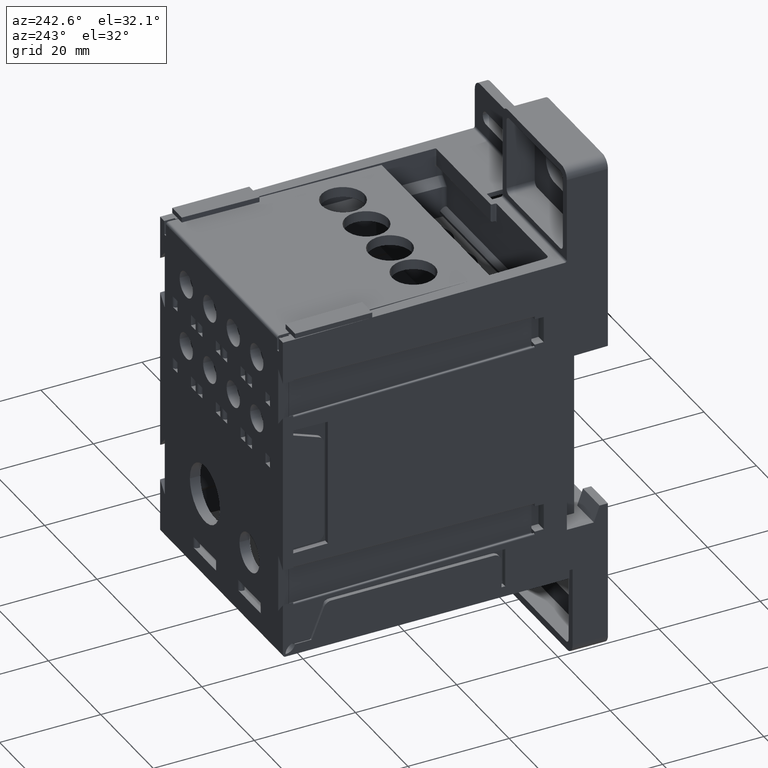
[diagram: clean part render]
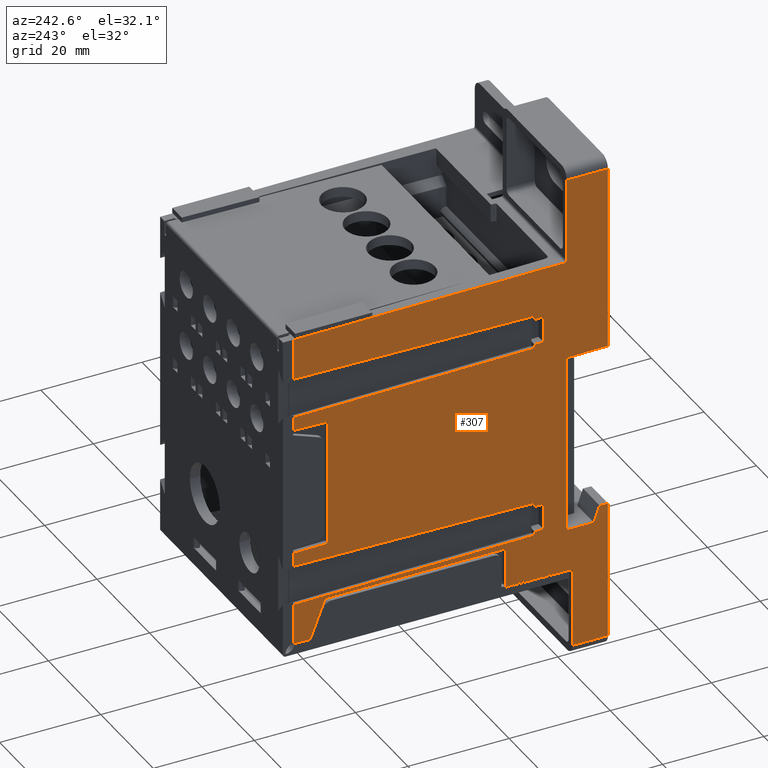
[diagram: same view with one face highlighted and labeled with its STEP entity id]
A machine part, auxiliary view. The second image highlights one B-rep face of the part: STEP entity #307.
In plain terms, the highlighted planar face has unit normal (1, 0, 0).
Its self-contained STEP definition (entity closure, byte-faithful):
#307 = ADVANCED_FACE ( 'NONE', ( #2329 ), #8081, .F. ) ;
#1542 = ORIENTED_EDGE ( 'NONE', *, *, #29911, .T. ) ;
#1543 = ORIENTED_EDGE ( 'NONE', *, *, #29912, .F. ) ;
#1544 = ORIENTED_EDGE ( 'NONE', *, *, #29914, .F. ) ;
#1545 = ORIENTED_EDGE ( 'NONE', *, *, #11513, .T. ) ;
#1546 = ORIENTED_EDGE ( 'NONE', *, *, #29913, .F. ) ;
#1547 = ORIENTED_EDGE ( 'NONE', *, *, #29932, .T. ) ;
#1548 = ORIENTED_EDGE ( 'NONE', *, *, #11498, .T. ) ;
#1549 = ORIENTED_EDGE ( 'NONE', *, *, #29910, .F. ) ;
#1550 = ORIENTED_EDGE ( 'NONE', *, *, #29908, .T. ) ;
#1551 = ORIENTED_EDGE ( 'NONE', *, *, #29909, .F. ) ;
#1552 = ORIENTED_EDGE ( 'NONE', *, *, #29906, .T. ) ;
#2329 = FACE_OUTER_BOUND ( 'NONE', #28103, .T. ) ;
#3083 = VERTEX_POINT ( 'NONE', #6830 ) ;
#3085 = VERTEX_POINT ( 'NONE', #6832 ) ;
#3097 = VERTEX_POINT ( 'NONE', #6835 ) ;
#3100 = VERTEX_POINT ( 'NONE', #6840 ) ;
#3102 = VERTEX_POINT ( 'NONE', #6842 ) ;
#3104 = VERTEX_POINT ( 'NONE', #6846 ) ;
#3115 = VERTEX_POINT ( 'NONE', #6852 ) ;
#3157 = VERTEX_POINT ( 'NONE', #6880 ) ;
#3165 = VERTEX_POINT ( 'NONE', #6888 ) ;
#3190 = VERTEX_POINT ( 'NONE', #6901 ) ;
#3242 = VERTEX_POINT ( 'NONE', #6933 ) ;
#3252 = VERTEX_POINT ( 'NONE', #6944 ) ;
#3374 = VERTEX_POINT ( 'NONE', #7058 ) ;
#3382 = VERTEX_POINT ( 'NONE', #7067 ) ;
#3413 = VERTEX_POINT ( 'NONE', #7106 ) ;
#3452 = VERTEX_POINT ( 'NONE', #7141 ) ;
#3506 = VERTEX_POINT ( 'NONE', #7165 ) ;
#3524 = VERTEX_POINT ( 'NONE', #7171 ) ;
#5604 = LINE ( 'NONE', #7365, #5606 ) ;
#5606 = VECTOR ( 'NONE', #7367, 39.37007874015748900 ) ;
#5609 = LINE ( 'NONE', #7382, #5610 ) ;
#5610 = VECTOR ( 'NONE', #7383, 39.37007874015748100 ) ;
#5611 = LINE ( 'NONE', #7392, #5612 ) ;
#5612 = VECTOR ( 'NONE', #7393, 39.37007874015748900 ) ;
#5615 = LINE ( 'NONE', #7413, #5619 ) ;
#5619 = VECTOR ( 'NONE', #7420, 39.37007874015748100 ) ;
#5707 = LINE ( 'NONE', #8298, #5712 ) ;
#5712 = VECTOR ( 'NONE', #8314, 39.37007874015748100 ) ;
#5713 = LINE ( 'NONE', #8312, #5720 ) ;
#5720 = VECTOR ( 'NONE', #8332, 39.37007874015748100 ) ;
#5753 = LINE ( 'NONE', #8414, #5756 ) ;
#5756 = VECTOR ( 'NONE', #8416, 39.37007874015748100 ) ;
#6830 = CARTESIAN_POINT ( 'NONE',  ( -0.9225000000000002100, 0.2499999999999998100, 0.6322708515814157200 ) ) ;
#6832 = CARTESIAN_POINT ( 'NONE',  ( -0.9224999999999998800, 0.2499999999999998100, -0.8937291484185850800 ) ) ;
#6835 = CARTESIAN_POINT ( 'NONE',  ( -0.9225000000000002100, 0.2499999999999998100, 0.8937291484185842000 ) ) ;
#6840 = CARTESIAN_POINT ( 'NONE',  ( -0.9225000000000001000, 2.129999999999999900, 0.9192531491917596000 ) ) ;
#6842 = CARTESIAN_POINT ( 'NONE',  ( -0.9224999999999998800, 0.2499999999999998100, -0.6322708515814153800 ) ) ;
#6846 = CARTESIAN_POINT ( 'NONE',  ( -0.9225000000000001000, 2.129999999999999900, -0.6067468508082404200 ) ) ;
#6852 = CARTESIAN_POINT ( 'NONE',  ( -0.9225000000000001000, 2.129999999999999900, -0.9192531491917601500 ) ) ;
#6880 = CARTESIAN_POINT ( 'NONE',  ( -0.9225000000000001000, -1.106111767379142400E-018, 0.4799999999999998200 ) ) ;
#6888 = CARTESIAN_POINT ( 'NONE',  ( -0.9224999999999998800, -0.2099999999999999900, -0.9235047687359475600 ) ) ;
#6901 = CARTESIAN_POINT ( 'NONE',  ( -0.9224999999999998800, -0.3199722876330932100, 0.4855851370558657600 ) ) ;
#6933 = CARTESIAN_POINT ( 'NONE',  ( -0.9224999999999998800, 2.128123941519958900E-018, -0.9235047687359475600 ) ) ;
#6944 = CARTESIAN_POINT ( 'NONE',  ( -0.9225000000000001000, 2.129999999999999900, 0.6067468508082404200 ) ) ;
#7058 = CARTESIAN_POINT ( 'NONE',  ( -0.9224999999999998800, -0.3199722876330931600, -0.7985047687359475600 ) ) ;
#7067 = CARTESIAN_POINT ( 'NONE',  ( -0.9224999999999998800, -0.2554962792832745100, -0.7985047687359474500 ) ) ;
#7106 = CARTESIAN_POINT ( 'NONE',  ( -0.9225000000000001000, -0.3199722876330932100, 1.930000000000000200 ) ) ;
#7141 = CARTESIAN_POINT ( 'NONE',  ( -0.9224999999999997600, -0.3199722876330931600, -1.878504768735948200 ) ) ;
#7165 = CARTESIAN_POINT ( 'NONE',  ( -0.9225000000000002100, 0.2499999999999998100, 0.6597462181704809600 ) ) ;
#7171 = CARTESIAN_POINT ( 'NONE',  ( -0.9224999999999998800, 0.2499999999999998100, -0.6597462181704815100 ) ) ;
#7365 = CARTESIAN_POINT ( 'NONE',  ( -0.9224999999999998800, 0.07151047475328595200, -0.6346941317837563300 ) ) ;
#7367 = DIRECTION ( 'NONE',  ( 1.565855785111682500E-018, -0.9999078507571987900, -0.01357534508288867400 ) ) ;
#7382 = CARTESIAN_POINT ( 'NONE',  ( -0.9224999999999998800, 0.08500312431365374100, -0.8914890524703990000 ) ) ;
#7383 = DIRECTION ( 'NONE',  ( 1.565855785111696000E-018, 0.9999078507571987900, -0.01357534508288865300 ) ) ;
#7392 = CARTESIAN_POINT ( 'NONE',  ( -0.9225000000000002100, 0.05079640711835514700, 0.8910246416852166700 ) ) ;
#7393 = DIRECTION ( 'NONE',  ( 1.565855785111680000E-018, -0.9999078507571987900, -0.01357534508288865200 ) ) ;
#7413 = CARTESIAN_POINT ( 'NONE',  ( -0.9225000000000002100, 0.1057171919485846400, 0.6342297209985753300 ) ) ;
#7420 = DIRECTION ( 'NONE',  ( 1.565855785111698600E-018, 0.9999078507571987900, -0.01357534508288867600 ) ) ;
#8081 = PLANE ( 'NONE',  #21751 ) ;
#8102 = CARTESIAN_POINT ( 'NONE',  ( -0.9224999999999998800, 0.08000000000000000200, -1.260000000000000000 ) ) ;
#8103 = DIRECTION ( 'NONE',  ( 1.000000000000000000, 3.971243624352005400E-033, 1.153455603191557700E-016 ) ) ;
#8104 = DIRECTION ( 'NONE',  ( 1.153455603191557700E-016, 2.304399515373206600E-018, -1.000000000000000000 ) ) ;
#8298 = CARTESIAN_POINT ( 'NONE',  ( -0.9224999999999998800, 2.903543389370236300E-018, -1.260000000000000000 ) ) ;
#8312 = CARTESIAN_POINT ( 'NONE',  ( -0.9224999999999998800, 2.128123941519958900E-018, -0.9235047687359475600 ) ) ;
#8314 = DIRECTION ( 'NONE',  ( -1.153455603191557700E-016, -2.304399515373206600E-018, 1.000000000000000000 ) ) ;
#8332 = DIRECTION ( 'NONE',  ( 7.703719777548943400E-033, 1.000000000000000000, 2.304399515373239000E-018 ) ) ;
#8414 = CARTESIAN_POINT ( 'NONE',  ( -0.9225000000000001000, -1.106111767379142000E-018, 0.4799999999999998200 ) ) ;
#8416 = DIRECTION ( 'NONE',  ( 2.013057599426119900E-018, 0.9998476951563912700, -0.01745240643728354600 ) ) ;
#11485 = EDGE_CURVE ( 'NONE', #3104, #3102, #5604, .T. ) ;
#11494 = EDGE_CURVE ( 'NONE', #3085, #3115, #5609, .T. ) ;
#11498 = EDGE_CURVE ( 'NONE', #3100, #3097, #5611, .T. ) ;
#11513 = EDGE_CURVE ( 'NONE', #3083, #3252, #5615, .T. ) ;
#11641 = EDGE_CURVE ( 'NONE', #3242, #3157, #5707, .T. ) ;
#11650 = EDGE_CURVE ( 'NONE', #3165, #3242, #5713, .T. ) ;
#11689 = EDGE_CURVE ( 'NONE', #3190, #3157, #5753, .T. ) ;
#12148 = AXIS2_PLACEMENT_3D ( 'NONE', #16754, #16756, #16758 ) ;
#13586 = LINE ( 'NONE', #16106, #13589 ) ;
#13589 = VECTOR ( 'NONE', #16107, 39.37007874015748100 ) ;
#13636 = LINE ( 'NONE', #16172, #13639 ) ;
#13639 = VECTOR ( 'NONE', #16173, 39.37007874015748100 ) ;
#13711 = LINE ( 'NONE', #16267, #13724 ) ;
#13724 = VECTOR ( 'NONE', #16280, 39.37007874015748100 ) ;
#13726 = LINE ( 'NONE', #16285, #13729 ) ;
#13729 = VECTOR ( 'NONE', #16286, 39.37007874015748900 ) ;
#14235 = CARTESIAN_POINT ( 'NONE',  ( -0.9225000000000004300, 1.859999999999999700, -0.4959999999999994400 ) ) ;
#14248 = CARTESIAN_POINT ( 'NONE',  ( -0.9225000000000002100, 0.2499999999999998100, 0.8662537818295190700 ) ) ;
#14253 = CARTESIAN_POINT ( 'NONE',  ( -0.9225000000000003200, 1.859999999999999700, 0.4959999999999997200 ) ) ;
#14254 = CARTESIAN_POINT ( 'NONE',  ( -0.9225000000000001000, 2.129999999999999900, 0.5007128675306187200 ) ) ;
#14255 = CARTESIAN_POINT ( 'NONE',  ( -0.9225000000000002100, 0.1799999999999998000, 0.8653034200986028400 ) ) ;
#14256 = CARTESIAN_POINT ( 'NONE',  ( -0.9225000000000001000, 2.129999999999999900, 1.241411771605683800 ) ) ;
#14258 = CARTESIAN_POINT ( 'NONE',  ( -0.9225000000000002100, 0.01486910196752439100, 1.259870239312961900 ) ) ;
#14259 = CARTESIAN_POINT ( 'NONE',  ( -0.9225000000000001000, -2.937809045469430000E-018, 1.274869668158924400 ) ) ;
#14261 = CARTESIAN_POINT ( 'NONE',  ( -0.9225000000000002100, 0.1799999999999998000, 0.6606965799013970700 ) ) ;
#14262 = CARTESIAN_POINT ( 'NONE',  ( -0.9224999999999996500, -0.04499999999999992200, -1.878504768735948200 ) ) ;
#14266 = CARTESIAN_POINT ( 'NONE',  ( -0.9224999999999998800, 1.880475755969698300, -0.9413017974028712300 ) ) ;
#14267 = CARTESIAN_POINT ( 'NONE',  ( -0.9225000000000001000, -4.447491064670292600E-018, 1.930000000000000200 ) ) ;
#14270 = CARTESIAN_POINT ( 'NONE',  ( -0.9224999999999998800, 0.1799999999999998000, -0.8653034200986027300 ) ) ;
#14278 = CARTESIAN_POINT ( 'NONE',  ( -0.9224999999999998800, 1.998141250860344200, -1.240642816404675200 ) ) ;
#14283 = CARTESIAN_POINT ( 'NONE',  ( -0.9225000000000001000, 2.129999999999999900, -1.239492102533878800 ) ) ;
#14284 = CARTESIAN_POINT ( 'NONE',  ( -0.9224999999999997600, -0.04499999999999992900, -1.258473039978779100 ) ) ;
#14287 = CARTESIAN_POINT ( 'NONE',  ( -0.9225000000000001000, 2.129999999999999900, -0.5007128675306181700 ) ) ;
#14292 = CARTESIAN_POINT ( 'NONE',  ( -0.9224999999999998800, 0.4793017974028711500, -1.253897527510387000 ) ) ;
#14368 = CARTESIAN_POINT ( 'NONE',  ( -0.9224999999999998800, 0.4793017974028711000, -0.9413017974028712300 ) ) ;
#14369 = CARTESIAN_POINT ( 'NONE',  ( -0.9224999999999998800, 0.2499999999999998100, -0.8662537818295188400 ) ) ;
#14373 = CARTESIAN_POINT ( 'NONE',  ( -0.9224999999999998800, 0.1799999999999998000, -0.6606965799013976300 ) ) ;
#16106 = CARTESIAN_POINT ( 'NONE',  ( -0.9224999999999998800, -0.3199722876330931600, -0.7985047687359473300 ) ) ;
#16107 = DIRECTION ( 'NONE',  ( -1.153455603191557700E-016, -2.304399515373206600E-018, 1.000000000000000000 ) ) ;
#16172 = CARTESIAN_POINT ( 'NONE',  ( -0.9224999999999998800, -0.3199722876330932100, 0.4799999999999998200 ) ) ;
#16173 = DIRECTION ( 'NONE',  ( 9.621497212822952200E-017, 2.304399515373206600E-018, -1.000000000000000000 ) ) ;
#16267 = CARTESIAN_POINT ( 'NONE',  ( -0.9224999999999998800, -0.2554962792832744500, -0.7985047687359475600 ) ) ;
#16280 = DIRECTION ( 'NONE',  ( 7.703719777548943400E-033, 1.000000000000000000, 2.304399515373239000E-018 ) ) ;
#16285 = CARTESIAN_POINT ( 'NONE',  ( -0.9224999999999998800, -0.2100000000000000500, -0.9235047687359473300 ) ) ;
#16286 = DIRECTION ( 'NONE',  ( 1.083893718723267700E-016, 0.3420201433256632200, -0.9396926207859103200 ) ) ;
#16668 = CARTESIAN_POINT ( 'NONE',  ( -0.9224999999999997600, -0.04499999999999992900, -1.260000000000000200 ) ) ;
#16692 = CARTESIAN_POINT ( 'NONE',  ( -0.9225000000000001000, 2.129999999999999900, -3.313025625656987200 ) ) ;
#16695 = DIRECTION ( 'NONE',  ( -6.938893903907228400E-018, -2.304399515373206600E-018, 1.000000000000000000 ) ) ;
#16697 = CARTESIAN_POINT ( 'NONE',  ( -0.9224999999999998800, 0.08000000000000000200, -0.9413017974028712300 ) ) ;
#16699 = DIRECTION ( 'NONE',  ( 7.703719777548943400E-033, 1.000000000000000000, 2.304399515373239000E-018 ) ) ;
#16701 = CARTESIAN_POINT ( 'NONE',  ( -0.9224999999999998800, 1.880649803423718000, -0.9417445741258968500 ) ) ;
#16705 = DIRECTION ( 'NONE',  ( 1.073498441774911600E-016, 0.3658334631717170000, -0.9306803303088487800 ) ) ;
#16707 = DIRECTION ( 'NONE',  ( 2.024885963496020900E-016, 2.304399515373206600E-018, -1.000000000000000000 ) ) ;
#16710 = CARTESIAN_POINT ( 'NONE',  ( -0.9224999999999998800, 0.4793017974028711000, -1.260000000000000000 ) ) ;
#16713 = DIRECTION ( 'NONE',  ( 1.153455603191557700E-016, 4.196644916302998900E-018, -1.000000000000000000 ) ) ;
#16715 = CARTESIAN_POINT ( 'NONE',  ( -0.9224999999999998800, -0.3199722876330932100, -1.878504768735948200 ) ) ;
#16718 = DIRECTION ( 'NONE',  ( -7.703719777548943400E-033, -1.000000000000000000, -2.304399515373239000E-018 ) ) ;
#16724 = CARTESIAN_POINT ( 'NONE',  ( -0.9225000000000003200, 0.08000000000000000200, 1.930000000000000200 ) ) ;
#16727 = DIRECTION ( 'NONE',  ( 7.703719777548943400E-033, 1.000000000000000000, 2.304399515373239000E-018 ) ) ;
#16730 = DIRECTION ( 'NONE',  ( -1.006567126704954700E-018, -0.9999619230641712000, 0.008726535498373952000 ) ) ;
#16731 = CARTESIAN_POINT ( 'NONE',  ( -0.9225000000000002100, -1.158212869796529600E-018, 1.260000000000000000 ) ) ;
#16740 = CARTESIAN_POINT ( 'NONE',  ( -0.9224999999999998800, -1.106111767379142400E-018, 0.4799999999999998200 ) ) ;
#16742 = DIRECTION ( 'NONE',  ( 9.621497212822952200E-017, 2.304399515373206600E-018, -1.000000000000000000 ) ) ;
#16754 = CARTESIAN_POINT ( 'NONE',  ( -0.9225000000000002100, 0.01499999999999999800, 1.274869668158924400 ) ) ;
#16756 = DIRECTION ( 'NONE',  ( 1.000000000000000000, 3.987233608101395300E-033, 1.084066664152485400E-016 ) ) ;
#16758 = DIRECTION ( 'NONE',  ( 0.0000000000000000000, 0.0000000000000000000, -1.000000000000000000 ) ) ;
#16761 = CARTESIAN_POINT ( 'NONE',  ( -0.9225000000000001000, 2.129999999999999900, -3.313025625656987200 ) ) ;
#16763 = DIRECTION ( 'NONE',  ( -6.938893903907228400E-018, -2.304399515373206600E-018, 1.000000000000000000 ) ) ;
#16765 = CARTESIAN_POINT ( 'NONE',  ( -0.9224999999999998800, 0.2499999999999998100, -1.260000000000000000 ) ) ;
#16768 = DIRECTION ( 'NONE',  ( 1.153455603191557700E-016, 2.304399515373206600E-018, -1.000000000000000000 ) ) ;
#16770 = CARTESIAN_POINT ( 'NONE',  ( -0.9225000000000002100, 0.2499999999999998100, 0.8662537818295190700 ) ) ;
#16772 = DIRECTION ( 'NONE',  ( -9.419787923909457300E-020, 0.9999078507571987900, 0.01357534508288998600 ) ) ;
#16774 = CARTESIAN_POINT ( 'NONE',  ( -0.9225000000000002100, 0.1799999999999998000, 0.6606965799013970700 ) ) ;
#16777 = DIRECTION ( 'NONE',  ( -6.938893903907228400E-018, -2.304399515373206600E-018, 1.000000000000000000 ) ) ;
#16779 = CARTESIAN_POINT ( 'NONE',  ( -0.9225000000000002100, 0.2499999999999998100, 0.6597462181704809600 ) ) ;
#16782 = DIRECTION ( 'NONE',  ( -9.419787923909645100E-020, -0.9999078507571987900, 0.01357534508288803100 ) ) ;
#16783 = CARTESIAN_POINT ( 'NONE',  ( -0.9225000000000001000, 2.129999999999999900, -3.313025625656987200 ) ) ;
#16786 = DIRECTION ( 'NONE',  ( -6.938893903907228400E-018, -2.304399515373206600E-018, 1.000000000000000000 ) ) ;
#16788 = CARTESIAN_POINT ( 'NONE',  ( -0.9225000000000001000, 1.859999999999999700, 0.4959999999999997200 ) ) ;
#16791 = DIRECTION ( 'NONE',  ( -2.013057599426104500E-018, 0.9998476951563912700, 0.01745240643728355300 ) ) ;
#16793 = CARTESIAN_POINT ( 'NONE',  ( -0.9225000000000004300, 1.859999999999999700, -0.4959999999999994400 ) ) ;
#16795 = DIRECTION ( 'NONE',  ( 1.307550573896545400E-016, -2.304399515373206600E-018, 1.000000000000000000 ) ) ;
#16797 = CARTESIAN_POINT ( 'NONE',  ( -0.9225000000000001000, 0.09387377169336022500, -0.4651721520134788900 ) ) ;
#16800 = DIRECTION ( 'NONE',  ( 2.013057599426119900E-018, 0.9998476951563912700, -0.01745240643728354600 ) ) ;
#16886 = CARTESIAN_POINT ( 'NONE',  ( -0.9224999999999998800, 0.2499999999999998100, -1.260000000000000000 ) ) ;
#16889 = DIRECTION ( 'NONE',  ( 1.153455603191557700E-016, 2.304399515373206600E-018, -1.000000000000000000 ) ) ;
#16899 = CARTESIAN_POINT ( 'NONE',  ( -0.9224999999999998800, 0.2499999999999998100, -0.9700000000000000800 ) ) ;
#16902 = DIRECTION ( 'NONE',  ( 1.153455603191557700E-016, 2.304399515373206600E-018, -1.000000000000000000 ) ) ;
#16904 = CARTESIAN_POINT ( 'NONE',  ( -0.9224999999999998800, 0.1799999999999998000, -0.8653034200986027300 ) ) ;
#16906 = DIRECTION ( 'NONE',  ( -6.938893903907228400E-018, -2.304399515373206600E-018, 1.000000000000000000 ) ) ;
#16908 = CARTESIAN_POINT ( 'NONE',  ( -0.9224999999999998800, 0.2499999999999998100, -0.8662537818295188400 ) ) ;
#16911 = DIRECTION ( 'NONE',  ( -9.419787923909645100E-020, -0.9999078507571987900, 0.01357534508288803100 ) ) ;
#16942 = CARTESIAN_POINT ( 'NONE',  ( -0.9224999999999998800, 0.2499999999999998100, -0.9700000000000000800 ) ) ;
#16945 = DIRECTION ( 'NONE',  ( 1.153455603191557700E-016, 2.304399515373206600E-018, -1.000000000000000000 ) ) ;
#17147 = CARTESIAN_POINT ( 'NONE',  ( -0.9224999999999998800, 0.07997715638382253700, -1.257382380858152600 ) ) ;
#17148 = DIRECTION ( 'NONE',  ( 1.006567126704939300E-018, -0.9999619230641712000, -0.008726535498373955500 ) ) ;
#17157 = CARTESIAN_POINT ( 'NONE',  ( -0.9224999999999998800, 0.07997715638382253700, -1.257382380858152600 ) ) ;
#17158 = DIRECTION ( 'NONE',  ( 1.006567126704939300E-018, -0.9999619230641712000, -0.008726535498373955500 ) ) ;
#17187 = CARTESIAN_POINT ( 'NONE',  ( -0.9225000000000001000, 2.129999999999999900, -3.313025625656987200 ) ) ;
#17188 = DIRECTION ( 'NONE',  ( -6.938893903907228400E-018, -2.304399515373206600E-018, 1.000000000000000000 ) ) ;
#17189 = CARTESIAN_POINT ( 'NONE',  ( -0.9224999999999998800, 0.2499999999999998100, -0.6597462181704815100 ) ) ;
#17190 = DIRECTION ( 'NONE',  ( -9.419787923908103200E-020, 0.9999078507571987900, 0.01357534508288803600 ) ) ;
#17761 = LINE ( 'NONE', #16668, #17774 ) ;
#17765 = LINE ( 'NONE', #16692, #17768 ) ;
#17767 = LINE ( 'NONE', #16697, #17770 ) ;
#17768 = VECTOR ( 'NONE', #16695, 39.37007874015748100 ) ;
#17769 = LINE ( 'NONE', #16701, #17772 ) ;
#17770 = VECTOR ( 'NONE', #16699, 39.37007874015748100 ) ;
#17772 = VECTOR ( 'NONE', #16705, 39.37007874015748100 ) ;
#17773 = LINE ( 'NONE', #16710, #17776 ) ;
#17774 = VECTOR ( 'NONE', #16707, 39.37007874015748100 ) ;
#17775 = LINE ( 'NONE', #16715, #17778 ) ;
#17776 = VECTOR ( 'NONE', #16713, 39.37007874015748100 ) ;
#17778 = VECTOR ( 'NONE', #16718, 39.37007874015748100 ) ;
#17779 = LINE ( 'NONE', #16724, #17781 ) ;
#17781 = VECTOR ( 'NONE', #16727, 39.37007874015748100 ) ;
#17782 = LINE ( 'NONE', #16740, #17784 ) ;
#17784 = VECTOR ( 'NONE', #16742, 39.37007874015748100 ) ;
#17785 = CIRCLE ( 'NONE', #12148, 0.01499999999999997700 ) ;
#17787 = LINE ( 'NONE', #16731, #17789 ) ;
#17788 = LINE ( 'NONE', #16761, #17791 ) ;
#17789 = VECTOR ( 'NONE', #16730, 39.37007874015748100 ) ;
#17790 = LINE ( 'NONE', #16765, #17793 ) ;
#17791 = VECTOR ( 'NONE', #16763, 39.37007874015748100 ) ;
#17792 = LINE ( 'NONE', #16770, #17795 ) ;
#17793 = VECTOR ( 'NONE', #16768, 39.37007874015748100 ) ;
#17794 = LINE ( 'NONE', #16774, #17797 ) ;
#17795 = VECTOR ( 'NONE', #16772, 39.37007874015748100 ) ;
#17796 = LINE ( 'NONE', #16779, #17799 ) ;
#17797 = VECTOR ( 'NONE', #16777, 39.37007874015748100 ) ;
#17798 = LINE ( 'NONE', #16783, #17801 ) ;
#17799 = VECTOR ( 'NONE', #16782, 39.37007874015748100 ) ;
#17800 = LINE ( 'NONE', #16788, #17803 ) ;
#17801 = VECTOR ( 'NONE', #16786, 39.37007874015748100 ) ;
#17802 = LINE ( 'NONE', #16793, #17805 ) ;
#17803 = VECTOR ( 'NONE', #16791, 39.37007874015748100 ) ;
#17804 = LINE ( 'NONE', #16797, #17807 ) ;
#17805 = VECTOR ( 'NONE', #16795, 39.37007874015748100 ) ;
#17807 = VECTOR ( 'NONE', #16800, 39.37007874015748100 ) ;
#17824 = LINE ( 'NONE', #16886, #17827 ) ;
#17827 = VECTOR ( 'NONE', #16889, 39.37007874015748100 ) ;
#17830 = LINE ( 'NONE', #16899, #17833 ) ;
#17832 = LINE ( 'NONE', #16904, #17835 ) ;
#17833 = VECTOR ( 'NONE', #16902, 39.37007874015748100 ) ;
#17834 = LINE ( 'NONE', #16908, #17837 ) ;
#17835 = VECTOR ( 'NONE', #16906, 39.37007874015748100 ) ;
#17837 = VECTOR ( 'NONE', #16911, 39.37007874015748100 ) ;
#17844 = LINE ( 'NONE', #16942, #17847 ) ;
#17847 = VECTOR ( 'NONE', #16945, 39.37007874015748100 ) ;
#17931 = LINE ( 'NONE', #17147, #17934 ) ;
#17934 = VECTOR ( 'NONE', #17148, 39.37007874015748100 ) ;
#17941 = LINE ( 'NONE', #17157, #17944 ) ;
#17944 = VECTOR ( 'NONE', #17158, 39.37007874015748100 ) ;
#17971 = LINE ( 'NONE', #17187, #17974 ) ;
#17973 = LINE ( 'NONE', #17189, #17976 ) ;
#17974 = VECTOR ( 'NONE', #17188, 39.37007874015748100 ) ;
#17976 = VECTOR ( 'NONE', #17190, 39.37007874015748100 ) ;
#21751 = AXIS2_PLACEMENT_3D ( 'NONE', #8102, #8103, #8104 ) ;
#25717 = VERTEX_POINT ( 'NONE', #14235 ) ;
#25730 = VERTEX_POINT ( 'NONE', #14248 ) ;
#25735 = VERTEX_POINT ( 'NONE', #14253 ) ;
#25736 = VERTEX_POINT ( 'NONE', #14254 ) ;
#25737 = VERTEX_POINT ( 'NONE', #14255 ) ;
#25738 = VERTEX_POINT ( 'NONE', #14256 ) ;
#25740 = VERTEX_POINT ( 'NONE', #14258 ) ;
#25741 = VERTEX_POINT ( 'NONE', #14259 ) ;
#25743 = VERTEX_POINT ( 'NONE', #14261 ) ;
#25744 = VERTEX_POINT ( 'NONE', #14262 ) ;
#25748 = VERTEX_POINT ( 'NONE', #14266 ) ;
#25749 = VERTEX_POINT ( 'NONE', #14267 ) ;
#25752 = VERTEX_POINT ( 'NONE', #14270 ) ;
#25760 = VERTEX_POINT ( 'NONE', #14278 ) ;
#25765 = VERTEX_POINT ( 'NONE', #14283 ) ;
#25766 = VERTEX_POINT ( 'NONE', #14284 ) ;
#25769 = VERTEX_POINT ( 'NONE', #14287 ) ;
#25775 = VERTEX_POINT ( 'NONE', #14292 ) ;
#25792 = ORIENTED_EDGE ( 'NONE', *, *, #29916, .F. ) ;
#25854 = VERTEX_POINT ( 'NONE', #14368 ) ;
#25855 = VERTEX_POINT ( 'NONE', #14369 ) ;
#25859 = VERTEX_POINT ( 'NONE', #14373 ) ;
#25862 = ORIENTED_EDGE ( 'NONE', *, *, #29915, .F. ) ;
#25884 = ORIENTED_EDGE ( 'NONE', *, *, #29918, .T. ) ;
#26851 = ORIENTED_EDGE ( 'NONE', *, *, #29902, .T. ) ;
#26860 = ORIENTED_EDGE ( 'NONE', *, *, #29935, .T. ) ;
#26862 = ORIENTED_EDGE ( 'NONE', *, *, #29688, .F. ) ;
#26865 = ORIENTED_EDGE ( 'NONE', *, *, #29736, .T. ) ;
#26881 = ORIENTED_EDGE ( 'NONE', *, *, #11650, .T. ) ;
#26883 = ORIENTED_EDGE ( 'NONE', *, *, #11641, .T. ) ;
#26886 = ORIENTED_EDGE ( 'NONE', *, *, #29904, .T. ) ;
#26890 = ORIENTED_EDGE ( 'NONE', *, *, #29936, .F. ) ;
#26895 = ORIENTED_EDGE ( 'NONE', *, *, #11689, .F. ) ;
#26903 = ORIENTED_EDGE ( 'NONE', *, *, #11494, .T. ) ;
#26904 = ORIENTED_EDGE ( 'NONE', *, *, #29659, .T. ) ;
#26911 = ORIENTED_EDGE ( 'NONE', *, *, #29899, .F. ) ;
#26922 = ORIENTED_EDGE ( 'NONE', *, *, #29937, .F. ) ;
#26924 = ORIENTED_EDGE ( 'NONE', *, *, #29995, .T. ) ;
#26925 = ORIENTED_EDGE ( 'NONE', *, *, #29901, .T. ) ;
#26930 = ORIENTED_EDGE ( 'NONE', *, *, #29990, .T. ) ;
#26932 = ORIENTED_EDGE ( 'NONE', *, *, #29897, .F. ) ;
#26956 = ORIENTED_EDGE ( 'NONE', *, *, #11485, .T. ) ;
#26966 = ORIENTED_EDGE ( 'NONE', *, *, #30011, .F. ) ;
#26968 = ORIENTED_EDGE ( 'NONE', *, *, #30010, .F. ) ;
#26975 = ORIENTED_EDGE ( 'NONE', *, *, #29739, .T. ) ;
#26983 = ORIENTED_EDGE ( 'NONE', *, *, #29943, .T. ) ;
#26995 = ORIENTED_EDGE ( 'NONE', *, *, #29898, .F. ) ;
#26997 = ORIENTED_EDGE ( 'NONE', *, *, #29900, .T. ) ;
#27388 = ORIENTED_EDGE ( 'NONE', *, *, #29917, .F. ) ;
#28103 = EDGE_LOOP ( 'NONE', ( #26968, #26956, #26983, #26966, #26890, #26922, #26860, #26903, #26932, #26924, #26911, #26995, #26925, #26930, #26997, #26851, #26904, #26865, #26975, #26881, #26883, #26895, #26862, #26886, #1552, #1550, #1551, #1549, #1548, #1542, #1543, #1546, #1544, #1547, #1545, #25862, #25792, #27388, #25884 ) ) ;
#29659 = EDGE_CURVE ( 'NONE', #3452, #3374, #13586, .T. ) ;
#29688 = EDGE_CURVE ( 'NONE', #3413, #3190, #13636, .T. ) ;
#29736 = EDGE_CURVE ( 'NONE', #3374, #3382, #13711, .T. ) ;
#29739 = EDGE_CURVE ( 'NONE', #3382, #3165, #13726, .T. ) ;
#29897 = EDGE_CURVE ( 'NONE', #25765, #3115, #17765, .T. ) ;
#29898 = EDGE_CURVE ( 'NONE', #25854, #25748, #17767, .T. ) ;
#29899 = EDGE_CURVE ( 'NONE', #25748, #25760, #17769, .T. ) ;
#29900 = EDGE_CURVE ( 'NONE', #25766, #25744, #17761, .T. ) ;
#29901 = EDGE_CURVE ( 'NONE', #25854, #25775, #17773, .T. ) ;
#29902 = EDGE_CURVE ( 'NONE', #25744, #3452, #17775, .T. ) ;
#29904 = EDGE_CURVE ( 'NONE', #3413, #25749, #17779, .T. ) ;
#29906 = EDGE_CURVE ( 'NONE', #25749, #25741, #17782, .T. ) ;
#29908 = EDGE_CURVE ( 'NONE', #25741, #25740, #17785, .T. ) ;
#29909 = EDGE_CURVE ( 'NONE', #25738, #25740, #17787, .T. ) ;
#29910 = EDGE_CURVE ( 'NONE', #3100, #25738, #17788, .T. ) ;
#29911 = EDGE_CURVE ( 'NONE', #3097, #25730, #17790, .T. ) ;
#29912 = EDGE_CURVE ( 'NONE', #25737, #25730, #17792, .T. ) ;
#29913 = EDGE_CURVE ( 'NONE', #25743, #25737, #17794, .T. ) ;
#29914 = EDGE_CURVE ( 'NONE', #3506, #25743, #17796, .T. ) ;
#29915 = EDGE_CURVE ( 'NONE', #25736, #3252, #17798, .T. ) ;
#29916 = EDGE_CURVE ( 'NONE', #25735, #25736, #17800, .T. ) ;
#29917 = EDGE_CURVE ( 'NONE', #25717, #25735, #17802, .T. ) ;
#29918 = EDGE_CURVE ( 'NONE', #25717, #25769, #17804, .T. ) ;
#29932 = EDGE_CURVE ( 'NONE', #3506, #3083, #17824, .T. ) ;
#29935 = EDGE_CURVE ( 'NONE', #25855, #3085, #17830, .T. ) ;
#29936 = EDGE_CURVE ( 'NONE', #25752, #25859, #17832, .T. ) ;
#29937 = EDGE_CURVE ( 'NONE', #25855, #25752, #17834, .T. ) ;
#29943 = EDGE_CURVE ( 'NONE', #3102, #3524, #17844, .T. ) ;
#29990 = EDGE_CURVE ( 'NONE', #25775, #25766, #17931, .T. ) ;
#29995 = EDGE_CURVE ( 'NONE', #25765, #25760, #17941, .T. ) ;
#30010 = EDGE_CURVE ( 'NONE', #3104, #25769, #17971, .T. ) ;
#30011 = EDGE_CURVE ( 'NONE', #25859, #3524, #17973, .T. ) ;